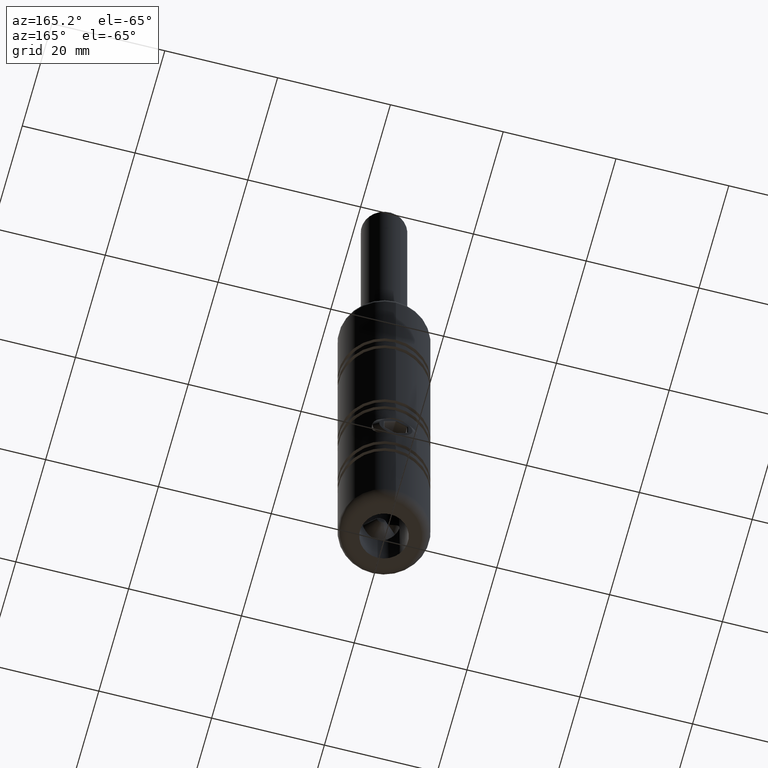
[diagram: clean part render]
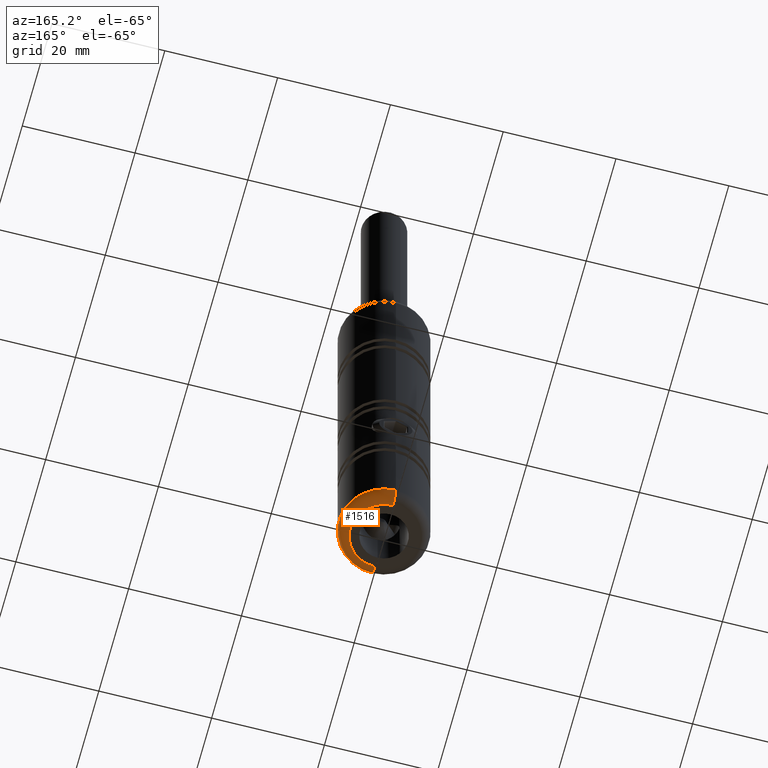
[diagram: same view with one face highlighted and labeled with its STEP entity id]
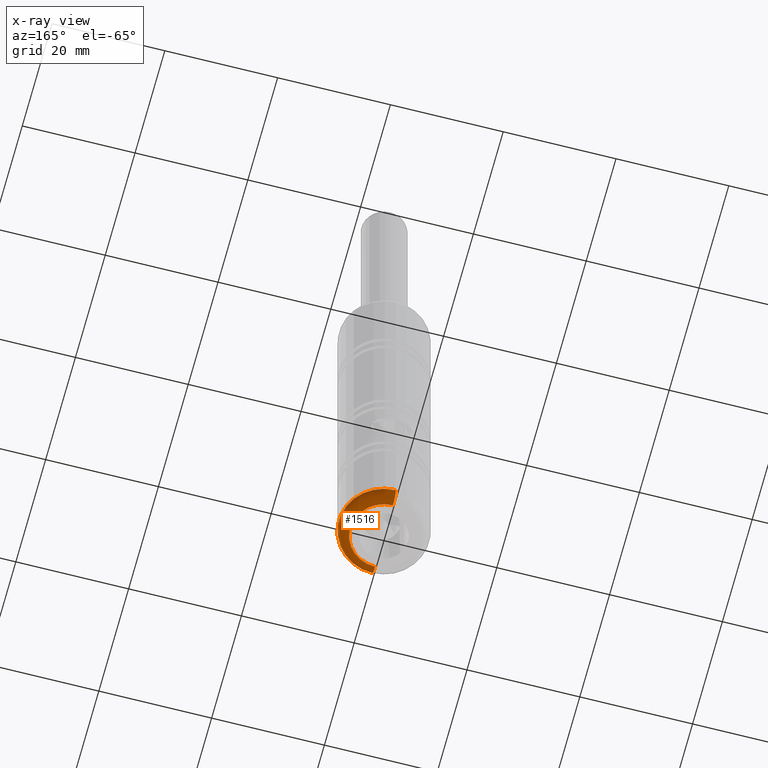
[diagram: x-ray of the same camera — body ghosted, the highlighted face saturated]
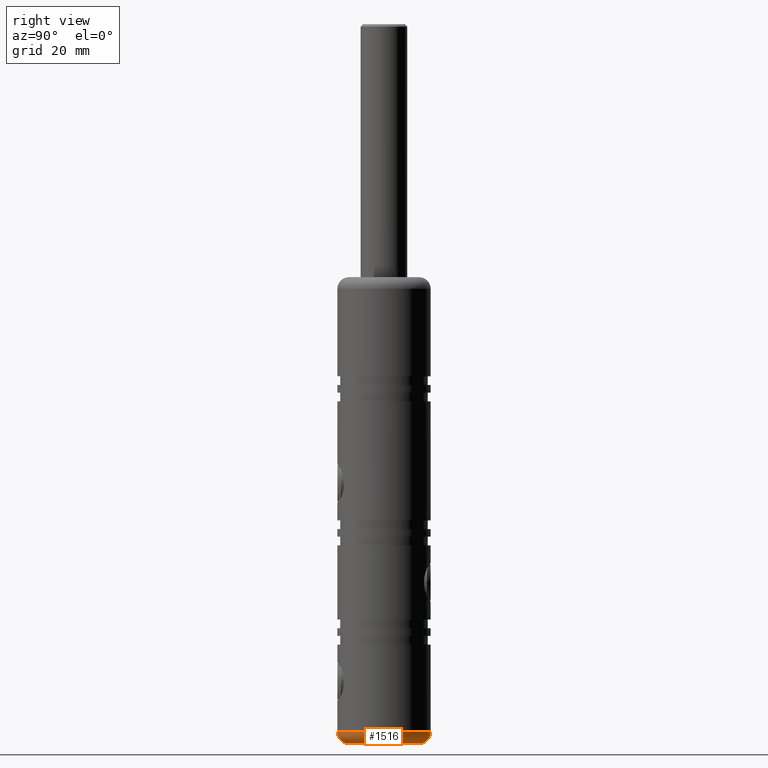
[diagram: same view with one face highlighted and labeled with its STEP entity id]
A machine part, auxiliary view. The second image highlights one B-rep face of the part: STEP entity #1516.
The next image is the same camera in x-ray: the body ghosted, the highlighted face saturated — about 0% of this face is hidden behind the body in this view.
A second angle (right view) of the same face is appended — the face is thin or edge-on in the first view.
In plain terms, the highlighted toroidal blend (fillet) surface has major radius 6 mm and minor (blend) radius 2 mm.
Its self-contained STEP definition (entity closure, byte-faithful):
#350 = DIRECTION ( 'NONE',  ( 0.0000000000000000000, -1.000000000000000000, 5.922595424346115800E-017 ) ) ;
#1184 = DIRECTION ( 'NONE',  ( 0.0000000000000000000, -5.922595424346115800E-017, -1.000000000000000000 ) ) ;
#1202 = VERTEX_POINT ( 'NONE', #2194 ) ;
#1516 = ADVANCED_FACE ( 'NONE', ( #14116 ), #16877, .T. ) ;
#2128 = CARTESIAN_POINT ( 'NONE',  ( 0.0000000000000000000, -4.619624430989970600E-015, -38.00000000000000000 ) ) ;
#2194 = CARTESIAN_POINT ( 'NONE',  ( 9.797174393178821700E-016, 7.999999999999991100, -38.00000000000000000 ) ) ;
#3409 = VERTEX_POINT ( 'NONE', #7342 ) ;
#3917 = DIRECTION ( 'NONE',  ( 0.0000000000000000000, 0.0000000000000000000, 1.000000000000000000 ) ) ;
#3928 = DIRECTION ( 'NONE',  ( 1.000000000000000000, -1.224646799147353200E-016, 7.253087529070231300E-033 ) ) ;
#3934 = CIRCLE ( 'NONE', #13588, 7.999999999999996400 ) ;
#4055 = ORIENTED_EDGE ( 'NONE', *, *, #9630, .F. ) ;
#4241 = CARTESIAN_POINT ( 'NONE',  ( 0.0000000000000000000, -4.619624430989970600E-015, -38.00000000000000000 ) ) ;
#4412 = DIRECTION ( 'NONE',  ( -0.0000000000000000000, 5.922595424346115800E-017, 1.000000000000000000 ) ) ;
#4808 = EDGE_LOOP ( 'NONE', ( #7950, #15091, #4055, #7623 ) ) ;
#4852 = DIRECTION ( 'NONE',  ( -0.0000000000000000000, 5.922595424346115800E-017, 1.000000000000000000 ) ) ;
#5030 = DIRECTION ( 'NONE',  ( 0.0000000000000000000, -1.000000000000000000, 0.0000000000000000000 ) ) ;
#5530 = DIRECTION ( 'NONE',  ( -1.000000000000000000, -0.0000000000000000000, 0.0000000000000000000 ) ) ;
#6016 = CIRCLE ( 'NONE', #12550, 2.000000000000000900 ) ;
#6691 = CARTESIAN_POINT ( 'NONE',  ( 7.347880794884115800E-016, 5.999999999999992000, -38.00000000000000000 ) ) ;
#6800 = CARTESIAN_POINT ( 'NONE',  ( 0.0000000000000000000, -6.000000000000000900, -38.00000000000000000 ) ) ;
#7043 = CARTESIAN_POINT ( 'NONE',  ( 0.0000000000000000000, -8.000000000000001800, -38.00000000000000000 ) ) ;
#7243 = EDGE_CURVE ( 'NONE', #3409, #1202, #6016, .T. ) ;
#7342 = CARTESIAN_POINT ( 'NONE',  ( 8.572527594031469200E-016, 5.999999999999992000, -40.00000000000000000 ) ) ;
#7623 = ORIENTED_EDGE ( 'NONE', *, *, #15885, .F. ) ;
#7711 = CIRCLE ( 'NONE', #16026, 2.000000000000001800 ) ;
#7950 = ORIENTED_EDGE ( 'NONE', *, *, #16405, .F. ) ;
#8721 = CIRCLE ( 'NONE', #12831, 5.999999999999996400 ) ;
#9630 = EDGE_CURVE ( 'NONE', #14943, #1202, #3934, .T. ) ;
#11767 = CARTESIAN_POINT ( 'NONE',  ( 0.0000000000000000000, -4.738076339476893500E-015, -40.00000000000000000 ) ) ;
#12378 = CARTESIAN_POINT ( 'NONE',  ( 0.0000000000000000000, -6.000000000000000900, -40.00000000000000000 ) ) ;
#12503 = AXIS2_PLACEMENT_3D ( 'NONE', #4241, #4412, #350 ) ;
#12550 = AXIS2_PLACEMENT_3D ( 'NONE', #6691, #3928, #14717 ) ;
#12831 = AXIS2_PLACEMENT_3D ( 'NONE', #11767, #1184, #14689 ) ;
#13588 = AXIS2_PLACEMENT_3D ( 'NONE', #2128, #4852, #5030 ) ;
#14116 = FACE_OUTER_BOUND ( 'NONE', #4808, .T. ) ;
#14689 = DIRECTION ( 'NONE',  ( 0.0000000000000000000, -1.000000000000000000, 0.0000000000000000000 ) ) ;
#14717 = DIRECTION ( 'NONE',  ( 1.224646799147352500E-016, 1.000000000000000000, 0.0000000000000000000 ) ) ;
#14943 = VERTEX_POINT ( 'NONE', #7043 ) ;
#15091 = ORIENTED_EDGE ( 'NONE', *, *, #7243, .T. ) ;
#15435 = VERTEX_POINT ( 'NONE', #12378 ) ;
#15885 = EDGE_CURVE ( 'NONE', #15435, #14943, #7711, .T. ) ;
#16026 = AXIS2_PLACEMENT_3D ( 'NONE', #6800, #5530, #3917 ) ;
#16405 = EDGE_CURVE ( 'NONE', #3409, #15435, #8721, .T. ) ;
#16877 = TOROIDAL_SURFACE ( 'NONE', #12503, 5.999999999999996400, 2.000000000000000000 ) ;